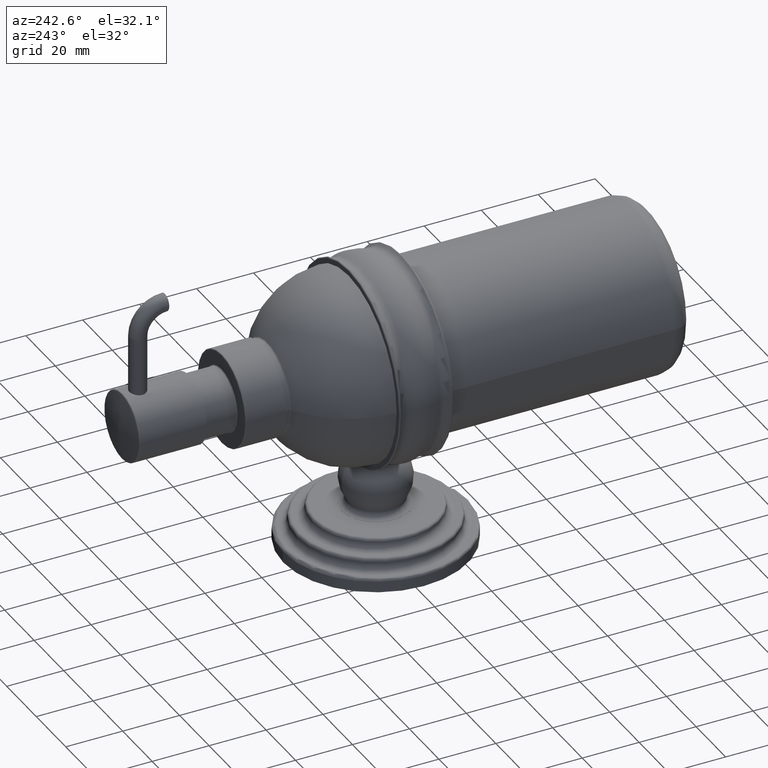
[diagram: clean part render]
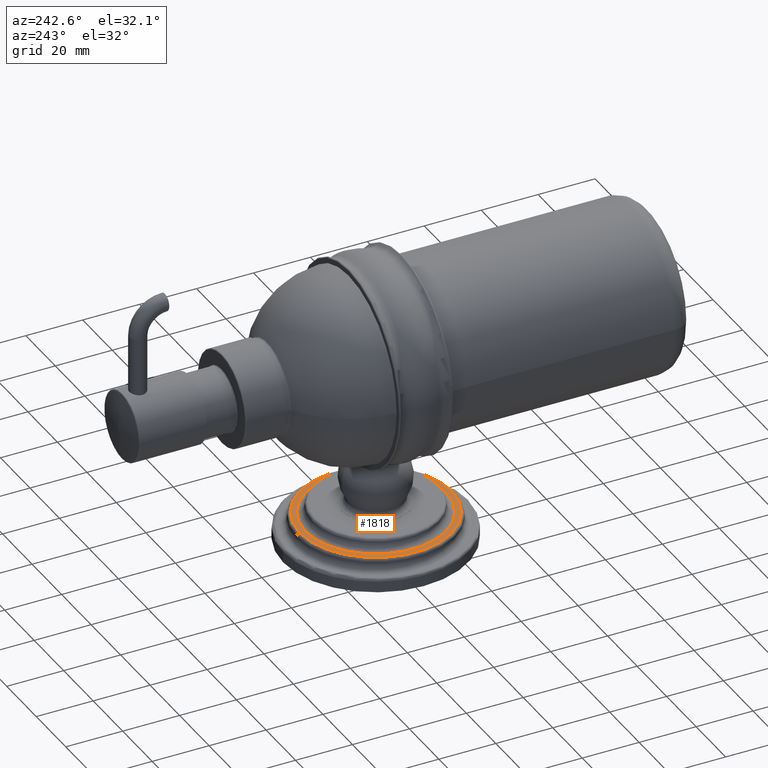
[diagram: same view with one face highlighted and labeled with its STEP entity id]
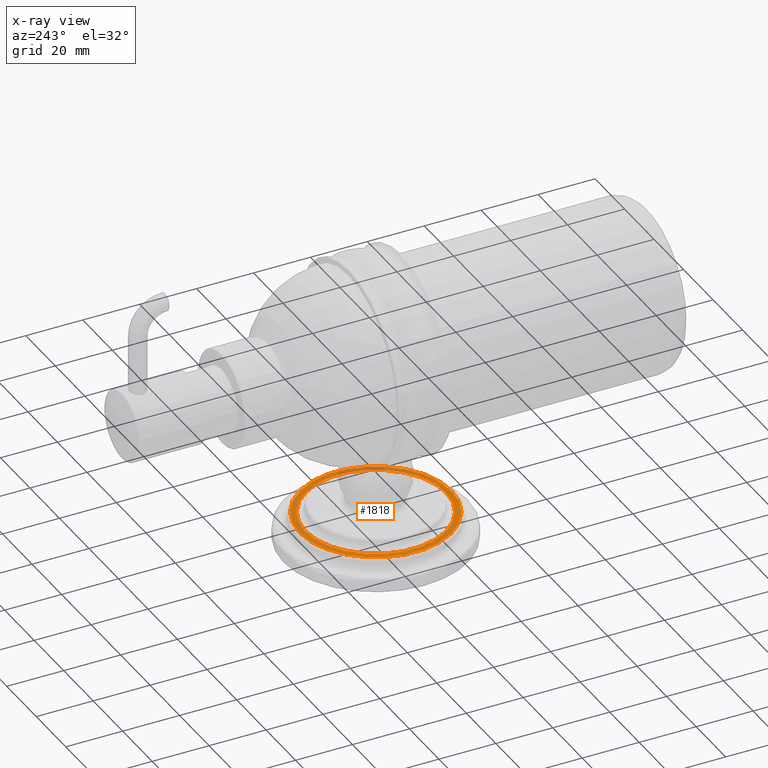
[diagram: x-ray of the same camera — body ghosted, the highlighted face saturated]
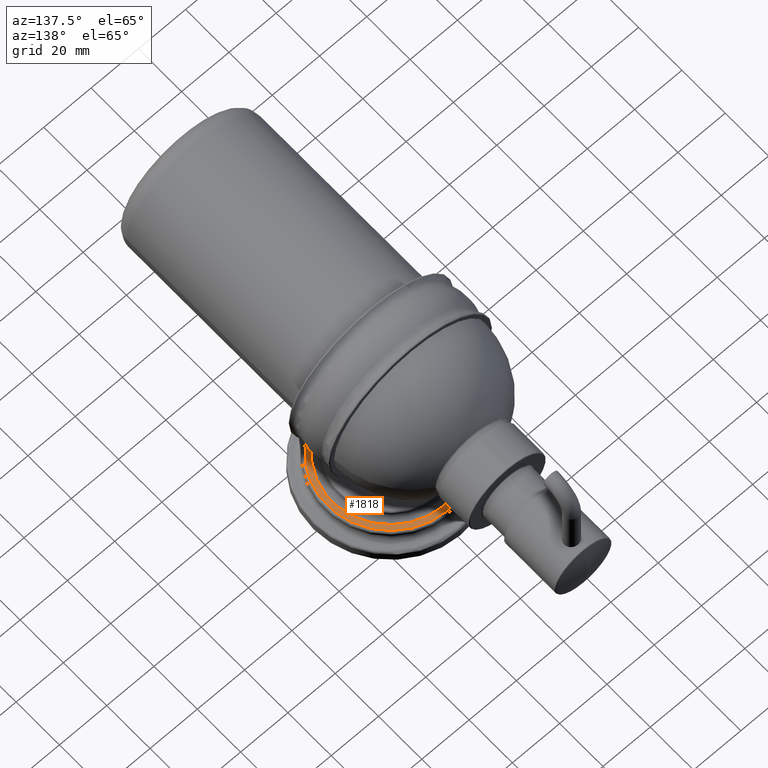
[diagram: same view with one face highlighted and labeled with its STEP entity id]
A machine part, auxiliary view. The second image highlights one B-rep face of the part: STEP entity #1818.
The next image is the same camera in x-ray: the body ghosted, the highlighted face saturated — about 15% of this face is hidden behind the body in this view.
A second angle (auxiliary view) of the same face is appended — the face is thin or edge-on in the first view.
In plain terms, the highlighted planar face has unit normal (0, 0, 1).
Its self-contained STEP definition (entity closure, byte-faithful):
#291=CARTESIAN_POINT('',(0.E0,1.215221601870E-14,3.62E-1));
#292=DIRECTION('',(0.E0,0.E0,1.E0));
#293=DIRECTION('',(0.E0,1.E0,0.E0));
#294=AXIS2_PLACEMENT_3D('',#291,#292,#293);
#299=CARTESIAN_POINT('',(0.E0,1.215221601870E-14,3.62E-1));
#300=DIRECTION('',(0.E0,0.E0,1.E0));
#301=DIRECTION('',(0.E0,-1.E0,0.E0));
#302=AXIS2_PLACEMENT_3D('',#299,#300,#301);
#353=CARTESIAN_POINT('',(0.E0,1.215221601870E-14,3.62E-1));
#354=DIRECTION('',(0.E0,0.E0,-1.E0));
#355=DIRECTION('',(0.E0,1.E0,0.E0));
#356=AXIS2_PLACEMENT_3D('',#353,#354,#355);
#369=CARTESIAN_POINT('',(0.E0,1.215221601870E-14,3.62E-1));
#370=DIRECTION('',(0.E0,0.E0,1.E0));
#371=DIRECTION('',(0.E0,1.E0,0.E0));
#372=AXIS2_PLACEMENT_3D('',#369,#370,#371);
#1492=CARTESIAN_POINT('',(0.E0,9.72E-1,3.62E-1));
#1494=VERTEX_POINT('',#1492);
#1500=CARTESIAN_POINT('',(0.E0,-9.72E-1,3.62E-1));
#1502=VERTEX_POINT('',#1500);
#1516=CARTESIAN_POINT('',(0.E0,1.052E0,3.62E-1));
#1517=CARTESIAN_POINT('',(0.E0,-1.052E0,3.62E-1));
#1518=VERTEX_POINT('',#1516);
#1519=VERTEX_POINT('',#1517);
#1802=CARTESIAN_POINT('',(0.E0,1.215221601870E-14,3.62E-1));
#1803=DIRECTION('',(0.E0,0.E0,1.E0));
#1804=DIRECTION('',(0.E0,1.E0,0.E0));
#1805=AXIS2_PLACEMENT_3D('',#1802,#1803,#1804);
#1806=PLANE('',#1805);
#1807=ORIENTED_EDGE('',*,*,#1792,.F.);
#1809=ORIENTED_EDGE('',*,*,#1808,.F.);
#1810=EDGE_LOOP('',(#1807,#1809));
#1811=FACE_OUTER_BOUND('',#1810,.F.);
#1813=ORIENTED_EDGE('',*,*,#1812,.F.);
#1815=ORIENTED_EDGE('',*,*,#1814,.T.);
#1816=EDGE_LOOP('',(#1813,#1815));
#1817=FACE_BOUND('',#1816,.F.);
#295=CIRCLE('',#294,1.052E0);
#303=CIRCLE('',#302,1.052E0);
#357=CIRCLE('',#356,9.72E-1);
#373=CIRCLE('',#372,9.72E-1);
#1792=EDGE_CURVE('',#1518,#1519,#295,.T.);
#1808=EDGE_CURVE('',#1519,#1518,#303,.T.);
#1812=EDGE_CURVE('',#1494,#1502,#357,.T.);
#1814=EDGE_CURVE('',#1494,#1502,#373,.T.);
#1818=ADVANCED_FACE('',(#1811,#1817),#1806,.T.);